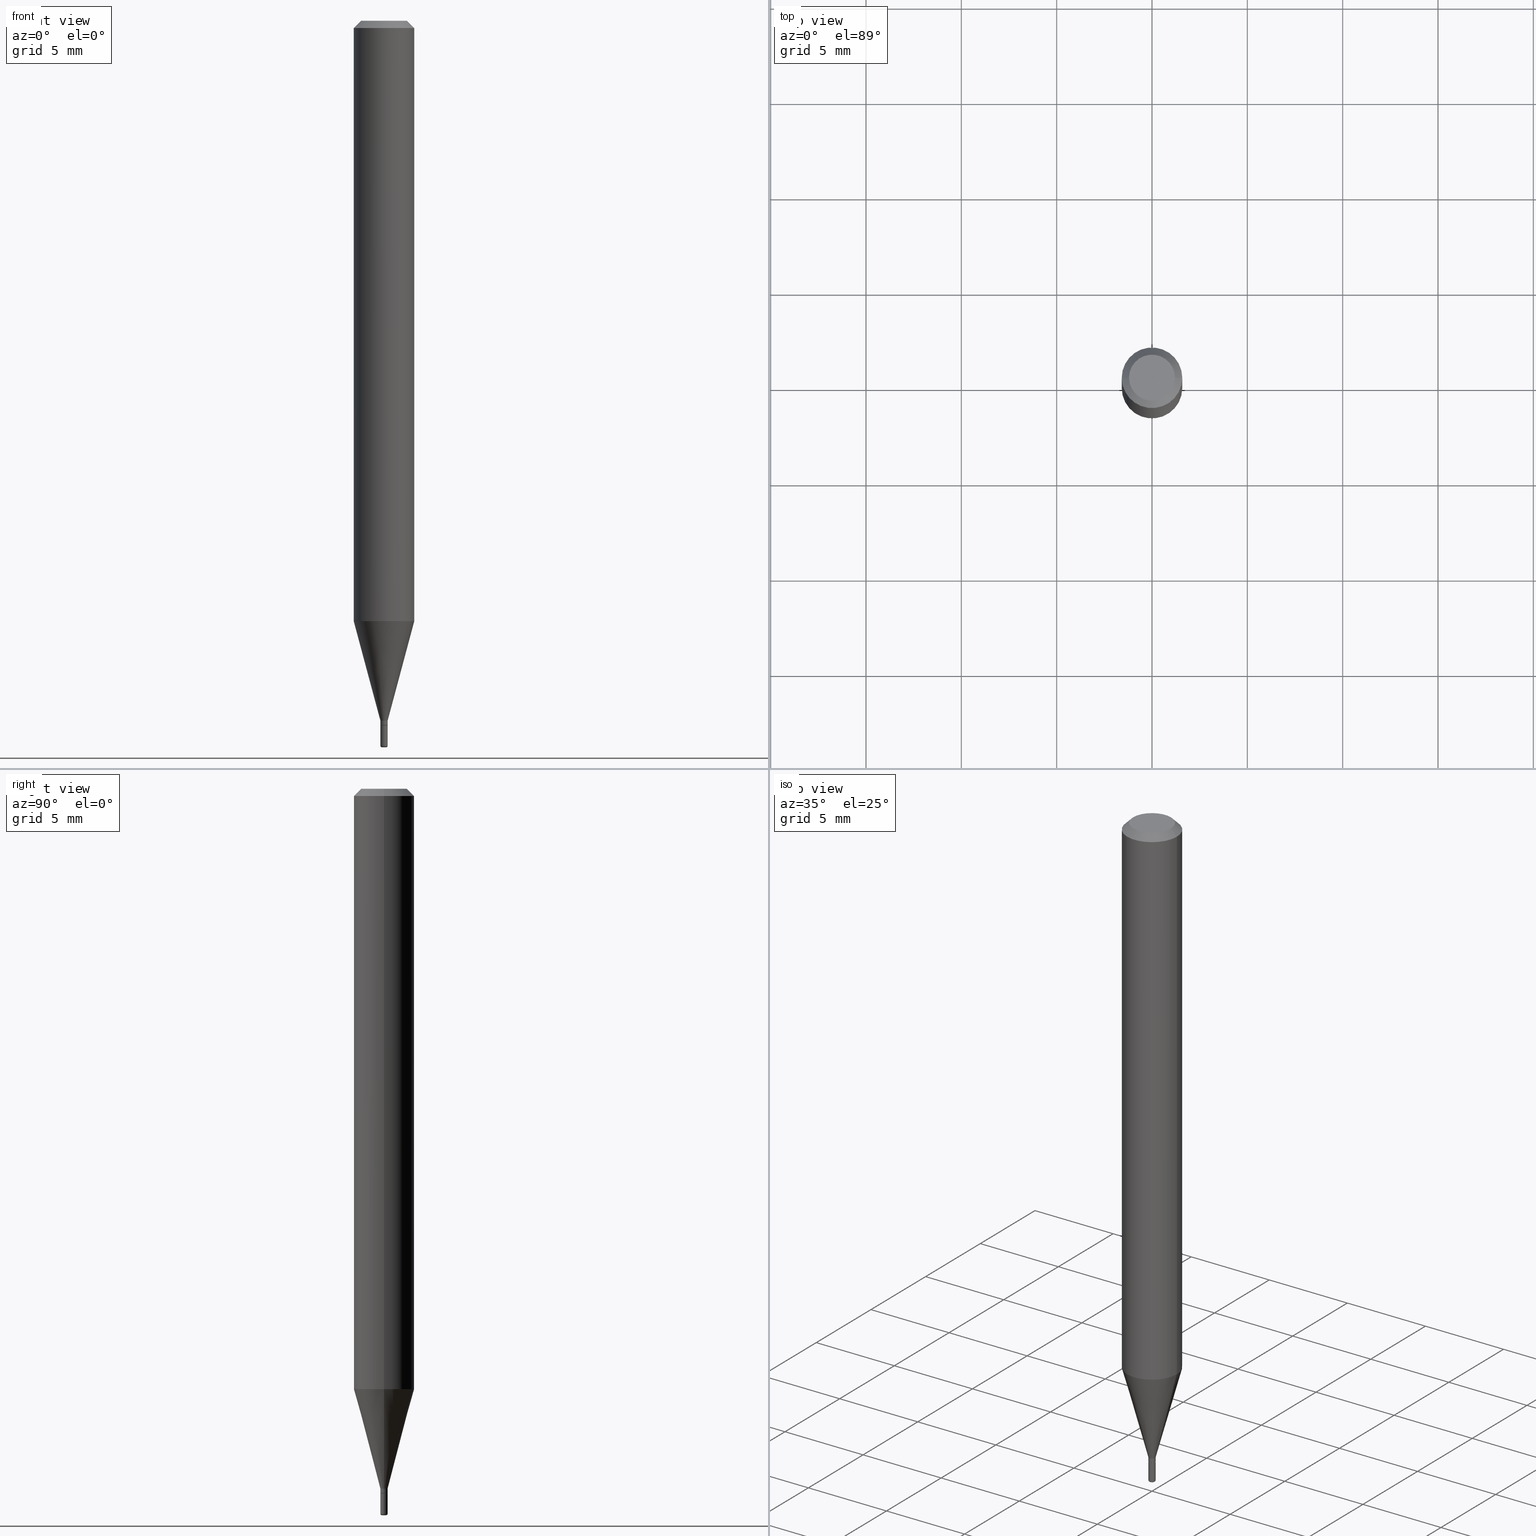
[diagram: canonical four-view strip — front | top / right | iso, engineering-drawing reading convention]
A machine part, canonical four-view strip (front | top / right | iso — engineering-drawing reading convention). The complete STEP part file that produces these views, byte-faithful:
ISO-10303-21;
HEADER;
FILE_DESCRIPTION (( 'STEP AP203' ),
    '1' );
FILE_NAME ('08987.STEP',
    '2024-02-29T21:03:39',
    ( '' ),
    ( '' ),
    'SwSTEP 2.0',
    'SolidWorks 2023',
    '' );
FILE_SCHEMA (( 'CONFIG_CONTROL_DESIGN' ));
ENDSEC;

DATA;
#1 = CONICAL_SURFACE ( 'NONE', #30, 0.06250000000000000000, 0.7853981633974488341 ) ;
#2 = CONICAL_SURFACE ( 'NONE', #285, 0.006999999999999981064, 0.7853981633972754173 ) ;
#3 = MECHANICAL_CONTEXT ( 'NONE', #153, 'mechanical' ) ;
#4 = APPROVAL_DATE_TIME ( #85, #498 ) ;
#5 = VERTEX_POINT ( 'NONE', #199 ) ;
#6 = AXIS2_PLACEMENT_3D ( 'NONE', #260, #412, #196 ) ;
#7 = EDGE_CURVE ( 'NONE', #397, #500, #471, .T. ) ;
#8 = FACE_OUTER_BOUND ( 'NONE', #293, .T. ) ;
#9 = CARTESIAN_POINT ( 'NONE',  ( 0.006999999999999981064, -5.128986086760581011E-15, -1.455000000000000293 ) ) ;
#10 = LINE ( 'NONE', #140, #274 ) ;
#11 = CARTESIAN_POINT ( 'NONE',  ( 0.007499999999999965028, -5.279119784330836629E-15, -1.497000000000000108 ) ) ;
#12 = EDGE_LOOP ( 'NONE', ( #428, #108, #54, #371 ) ) ;
#13 = EDGE_CURVE ( 'NONE', #291, #500, #324, .T. ) ;
#14 = CARTESIAN_POINT ( 'NONE',  ( 0.06250000000000000000, -4.888073874380378612E-16, -0.01499999999999970281 ) ) ;
#15 = CARTESIAN_POINT ( 'NONE',  ( -0.007499999999999981508, 5.329070518200738255E-17, -3.689201317691170508E-31 ) ) ;
#16 = DIRECTION ( 'NONE',  ( 1.000000000000000000, -6.982962677686266711E-15, 0.000000000000000000 ) ) ;
#17 = VECTOR ( 'NONE', #352, 39.37007874015748143 ) ;
#18 = CARTESIAN_POINT ( 'NONE',  ( -0.007499999999999976304, -4.991899829446338518E-15, -1.445000000000000062 ) ) ;
#19 = FACE_OUTER_BOUND ( 'NONE', #459, .T. ) ;
#20 = DIRECTION ( 'NONE',  ( 7.105427357601001859E-15, 1.000000000000000000, -3.491481338843145583E-15 ) ) ;
#21 = ORIENTED_EDGE ( 'NONE', *, *, #255, .T. ) ;
#22 = CARTESIAN_POINT ( 'NONE',  ( 3.668203209277632395E-31, -5.237222008264614861E-17, -0.01499999999999970281 ) ) ;
#23 = DIRECTION ( 'NONE',  ( 1.000000000000000000, -6.982962677686268288E-15, 0.000000000000000000 ) ) ;
#24 = MANIFOLD_SOLID_BREP ( 'Body-Move/Copy2[2]', #62 ) ;
#25 = DIRECTION ( 'NONE',  ( 1.000000000000000000, -6.982962677686265922E-15, 4.876176775795935793E-29 ) ) ;
#26 = CARTESIAN_POINT ( 'NONE',  ( 3.668203209277704895E-29, -5.237222008264718177E-15, -1.500000000000000222 ) ) ;
#27 = LINE ( 'NONE', #191, #17 ) ;
#28 = CARTESIAN_POINT ( 'NONE',  ( 3.660866802859150328E-29, -5.226747564248189155E-15, -1.497000000000000108 ) ) ;
#29 = ADVANCED_FACE ( 'NONE', ( #19 ), #183, .T. ) ;
#30 = AXIS2_PLACEMENT_3D ( 'NONE', #143, #387, #346 ) ;
#31 = LINE ( 'NONE', #468, #204 ) ;
#32 = ORIENTED_EDGE ( 'NONE', *, *, #355, .F. ) ;
#33 = CALENDAR_DATE ( 2024, 29, 2 ) ;
#34 = CARTESIAN_POINT ( 'NONE',  ( 3.031738664122096989E-29, -4.328519318365077590E-15, -1.239737205583711699 ) ) ;
#35 = AXIS2_PLACEMENT_3D ( 'NONE', #329, #101, #25 ) ;
#36 = VECTOR ( 'NONE', #491, 39.37007874015748143 ) ;
#37 = ORIENTED_EDGE ( 'NONE', *, *, #445, .T. ) ;
#38 = CC_DESIGN_PERSON_AND_ORGANIZATION_ASSIGNMENT ( #515, #314, ( #194 ) ) ;
#39 = APPROVAL_STATUS ( 'not_yet_approved' ) ;
#40 = VERTEX_POINT ( 'NONE', #11 ) ;
#41 = CARTESIAN_POINT ( 'NONE',  ( 0.000000000000000000, 0.000000000000000000, 0.000000000000000000 ) ) ;
#42 = APPLICATION_PROTOCOL_DEFINITION ( 'international standard', 'config_control_design', 1994, #153 ) ;
#43 = EDGE_CURVE ( 'NONE', #351, #131, #358, .T. ) ;
#44 = DIRECTION ( 'NONE',  ( -2.445468806185136597E-29, 3.491481338843145583E-15, 1.000000000000000000 ) ) ;
#45 = AXIS2_PLACEMENT_3D ( 'NONE', #250, #70, #389 ) ;
#46 = COORDINATED_UNIVERSAL_TIME_OFFSET ( 5, 0, .BEHIND. ) ;
#47 = CARTESIAN_POINT ( 'NONE',  ( 3.031738664122096989E-29, -4.328519318365077590E-15, -1.239737205583711699 ) ) ;
#48 = EDGE_CURVE ( 'NONE', #40, #5, #152, .T. ) ;
#49 = DIRECTION ( 'NONE',  ( 1.000000000000000000, -6.982962677686266711E-15, 4.876176775795935232E-29 ) ) ;
#50 = CIRCLE ( 'NONE', #289, 0.007499999999999980640 ) ;
#51 = VECTOR ( 'NONE', #224, 39.37007874015748143 ) ;
#52 = ORIENTED_EDGE ( 'NONE', *, *, #239, .T. ) ;
#53 = CARTESIAN_POINT ( 'NONE',  ( 0.007499999999999978906, -5.237222008264685119E-17, 3.657132581846941247E-31 ) ) ;
#54 = ORIENTED_EDGE ( 'NONE', *, *, #403, .F. ) ;
#55 = DIRECTION ( 'NONE',  ( 2.445468806185136597E-29, -3.491481338843145583E-15, -1.000000000000000000 ) ) ;
#56 = CYLINDRICAL_SURFACE ( 'NONE', #440, 0.06250000000000000000 ) ;
#57 = VERTEX_POINT ( 'NONE', #137 ) ;
#58 = PRODUCT_RELATED_PRODUCT_CATEGORY ( 'detail', '', ( #450 ) ) ;
#59 = CARTESIAN_POINT ( 'NONE',  ( -0.004499999999999991854, -5.194773141138985013E-15, -1.497000000000000108 ) ) ;
#60 = ORIENTED_EDGE ( 'NONE', *, *, #493, .F. ) ;
#61 = DIRECTION ( 'NONE',  ( -2.445468806185136597E-29, 3.491481338843145583E-15, 1.000000000000000000 ) ) ;
#62 = CLOSED_SHELL ( 'NONE', ( #395, #434, #73, #460, #29, #107, #68, #406, #366, #372, #228, #378 ) ) ;
#63 = DIRECTION ( 'NONE',  ( 0.7071067811865479058, -7.319954787623257623E-15, -0.7071067811865471286 ) ) ;
#64 = AXIS2_PLACEMENT_3D ( 'NONE', #354, #499, #508 ) ;
#65 = CIRCLE ( 'NONE', #161, 0.007499999999999980640 ) ;
#66 = CARTESIAN_POINT ( 'NONE',  ( 0.06250000000000000000, -4.764954485720470049E-15, -1.239737205583711699 ) ) ;
#67 = DIRECTION ( 'NONE',  ( -2.445468806185136597E-29, 3.491481338843145583E-15, 1.000000000000000000 ) ) ;
#68 = ADVANCED_FACE ( 'NONE', ( #299 ), #82, .T. ) ;
#69 = ORIENTED_EDGE ( 'NONE', *, *, #429, .T. ) ;
#70 = DIRECTION ( 'NONE',  ( -2.445468806185136597E-29, 3.491481338843145583E-15, 1.000000000000000000 ) ) ;
#71 = ORIENTED_EDGE ( 'NONE', *, *, #477, .T. ) ;
#72 = PERSON_AND_ORGANIZATION ( #214, #488 ) ;
#73 = ADVANCED_FACE ( 'NONE', ( #237 ), #1, .T. ) ;
#74 = CARTESIAN_POINT ( 'NONE',  ( -0.004499999999999991854, -5.189352222110848406E-15, -1.500000000000000222 ) ) ;
#75 = ORIENTED_EDGE ( 'NONE', *, *, #149, .T. ) ;
#76 = COORDINATED_UNIVERSAL_TIME_OFFSET ( 5, 0, .BEHIND. ) ;
#77 = CARTESIAN_POINT ( 'NONE',  ( 0.000000000000000000, 0.000000000000000000, 0.000000000000000000 ) ) ;
#78 = AXIS2_PLACEMENT_3D ( 'NONE', #254, #327, #483 ) ;
#79 = CARTESIAN_POINT ( 'NONE',  ( 0.007499999999999976304, -5.097562754710993158E-15, -1.445000000000000062 ) ) ;
#80 = DIRECTION ( 'NONE',  ( 1.000000000000000000, -6.982962677686262766E-15, 0.000000000000000000 ) ) ;
#81 = PERSON_AND_ORGANIZATION ( #214, #488 ) ;
#82 = CYLINDRICAL_SURFACE ( 'NONE', #45, 0.06250000000000000000 ) ;
#83 = CIRCLE ( 'NONE', #160, 0.002999999999999972741 ) ;
#84 = AXIS2_PLACEMENT_3D ( 'NONE', #264, #485, #455 ) ;
#85 = DATE_AND_TIME ( #439, #359 ) ;
#86 = ORIENTED_EDGE ( 'NONE', *, *, #198, .F. ) ;
#87 = CYLINDRICAL_SURFACE ( 'NONE', #367, 0.007499999999999981508 ) ;
#88 = DIRECTION ( 'NONE',  ( -2.445468806185136597E-29, 3.491481338843145583E-15, 1.000000000000000000 ) ) ;
#89 = CARTESIAN_POINT ( 'NONE',  ( 0.000000000000000000, 0.000000000000000000, 0.000000000000000000 ) ) ;
#90 = AXIS2_PLACEMENT_3D ( 'NONE', #447, #174, #261 ) ;
#91 = PLANE ( 'NONE',  #6 ) ;
#92 = AXIS2_PLACEMENT_3D ( 'NONE', #139, #88, #229 ) ;
#93 = PLANE ( 'NONE',  #419 ) ;
#94 = DIRECTION ( 'NONE',  ( 1.000000000000000000, -6.982962677686266711E-15, 4.876176775795935793E-29 ) ) ;
#95 = FACE_OUTER_BOUND ( 'NONE', #111, .T. ) ;
#96 = EDGE_CURVE ( 'NONE', #5, #40, #165, .T. ) ;
#97 = DIRECTION ( 'NONE',  ( -2.445468806185136877E-29, 3.491481338843145188E-15, 1.000000000000000000 ) ) ;
#98 = ORIENTED_EDGE ( 'NONE', *, *, #477, .F. ) ;
#99 = FACE_OUTER_BOUND ( 'NONE', #280, .T. ) ;
#100 =( NAMED_UNIT ( * ) SI_UNIT ( $, .STERADIAN. ) SOLID_ANGLE_UNIT ( ) );
#101 = DIRECTION ( 'NONE',  ( -2.438088387897960049E-29, 3.491481338843145188E-15, 1.000000000000000000 ) ) ;
#102 = CARTESIAN_POINT ( 'NONE',  ( -0.007499999999999980640, -5.025068902165347874E-15, -1.454500000000000126 ) ) ;
#103 = FACE_OUTER_BOUND ( 'NONE', #186, .T. ) ;
#104 = TOROIDAL_SURFACE ( 'NONE', #273, 0.004499999999999991854, 0.002999999999999972741 ) ;
#105 = SECURITY_CLASSIFICATION ( '', '', #240 ) ;
#106 = ORIENTED_EDGE ( 'NONE', *, *, #207, .F. ) ;
#107 = ADVANCED_FACE ( 'NONE', ( #95 ), #252, .T. ) ;
#108 = ORIENTED_EDGE ( 'NONE', *, *, #211, .T. ) ;
#109 = FACE_OUTER_BOUND ( 'NONE', #118, .T. ) ;
#110 = DIRECTION ( 'NONE',  ( 1.000000000000000000, -6.982962677686300632E-15, 0.000000000000000000 ) ) ;
#111 = EDGE_LOOP ( 'NONE', ( #241, #164, #484, #175 ) ) ;
#112 = ADVANCED_FACE ( 'NONE', ( #103 ), #104, .T. ) ;
#113 = CIRCLE ( 'NONE', #512, 0.006999999999999981064 ) ;
#114 = PERSON_AND_ORGANIZATION ( #214, #488 ) ;
#115 = LOCAL_TIME ( 16, 3, 39.00000000000000000, #124 ) ;
#116 = DIRECTION ( 'NONE',  ( 0.2588190451025206840, 1.565188264969626504E-15, 0.9659258262890682012 ) ) ;
#117 = APPROVAL ( #368, 'UNSPECIFIED' ) ;
#118 = EDGE_LOOP ( 'NONE', ( #171, #462, #360, #423 ) ) ;
#119 = ORIENTED_EDGE ( 'NONE', *, *, #457, .F. ) ;
#120 = VECTOR ( 'NONE', #116, 39.37007874015748854 ) ;
#121 = CIRCLE ( 'NONE', #172, 0.04750000000000000749 ) ;
#122 = EDGE_CURVE ( 'NONE', #154, #417, #270, .T. ) ;
#123 = APPLICATION_PROTOCOL_DEFINITION ( 'international standard', 'config_control_design', 1994, #443 ) ;
#124 = COORDINATED_UNIVERSAL_TIME_OFFSET ( 5, 0, .BEHIND. ) ;
#125 = PERSON_AND_ORGANIZATION ( #214, #488 ) ;
#126 = EDGE_CURVE ( 'NONE', #310, #57, #438, .T. ) ;
#127 = AXIS2_PLACEMENT_3D ( 'NONE', #77, #361, #517 ) ;
#128 = ORIENTED_EDGE ( 'NONE', *, *, #321, .T. ) ;
#129 = EDGE_CURVE ( 'NONE', #57, #310, #349, .T. ) ;
#130 = PLANE ( 'NONE',  #35 ) ;
#131 = VERTEX_POINT ( 'NONE', #226 ) ;
#132 = DIRECTION ( 'NONE',  ( -2.445468806185136597E-29, 3.491481338843145583E-15, 1.000000000000000000 ) ) ;
#133 = ORIENTED_EDGE ( 'NONE', *, *, #43, .F. ) ;
#134 = DIRECTION ( 'NONE',  ( 1.000000000000000000, -6.982962677686266711E-15, 4.876176775795935232E-29 ) ) ;
#135 = ADVANCED_FACE ( 'NONE', ( #306 ), #192, .T. ) ;
#136 = CIRCLE ( 'NONE', #284, 0.004499999999999991854 ) ;
#137 = CARTESIAN_POINT ( 'NONE',  ( 0.007499999999999999722, -5.132477568099424807E-15, -1.455000000000000293 ) ) ;
#138 = ORIENTED_EDGE ( 'NONE', *, *, #507, .T. ) ;
#139 = CARTESIAN_POINT ( 'NONE',  ( 3.668203209277632395E-31, -5.237222008264614861E-17, -0.01499999999999970281 ) ) ;
#140 = CARTESIAN_POINT ( 'NONE',  ( 0.007499999999999981508, -5.237222008264687584E-17, 3.657132581846942999E-31 ) ) ;
#141 = ORIENTED_EDGE ( 'NONE', *, *, #493, .T. ) ;
#142 = CARTESIAN_POINT ( 'NONE',  ( 3.533702424937522517E-29, -5.045190534628345684E-15, -1.445000000000000062 ) ) ;
#143 = CARTESIAN_POINT ( 'NONE',  ( 3.668203209277632395E-31, -5.237222008264614861E-17, -0.01499999999999970281 ) ) ;
#144 = ORIENTED_EDGE ( 'NONE', *, *, #355, .T. ) ;
#145 = DIRECTION ( 'NONE',  ( -1.000000000000000000, 6.982962677686265922E-15, -4.876176775795935793E-29 ) ) ;
#146 = EDGE_LOOP ( 'NONE', ( #60, #208, #342, #373 ) ) ;
#147 = DIRECTION ( 'NONE',  ( -2.445468806185136597E-29, 3.491481338843145583E-15, 1.000000000000000000 ) ) ;
#148 = ORIENTED_EDGE ( 'NONE', *, *, #48, .F. ) ;
#149 = EDGE_CURVE ( 'NONE', #131, #351, #113, .T. ) ;
#150 = AXIS2_PLACEMENT_3D ( 'NONE', #47, #44, #80 ) ;
#151 = CARTESIAN_POINT ( 'NONE',  ( 3.660866802859150328E-29, -5.226747564248189155E-15, -1.497000000000000108 ) ) ;
#152 = CIRCLE ( 'NONE', #408, 0.007499999999999965028 ) ;
#153 = APPLICATION_CONTEXT ( 'configuration controlled 3d designs of mechanical parts and assemblies' ) ;
#154 = VERTEX_POINT ( 'NONE', #155 ) ;
#155 = CARTESIAN_POINT ( 'NONE',  ( 0.04750000000000000749, -4.035134999187568762E-16, 2.731847993664288856E-16 ) ) ;
#156 = EDGE_CURVE ( 'NONE', #276, #154, #121, .T. ) ;
#157 = DIRECTION ( 'NONE',  ( -2.445468806185136597E-29, 3.491481338843145583E-15, 1.000000000000000000 ) ) ;
#158 = ORIENTED_EDGE ( 'NONE', *, *, #7, .F. ) ;
#159 = CC_DESIGN_PERSON_AND_ORGANIZATION_ASSIGNMENT ( #125, #288, ( #450 ) ) ;
#160 = AXIS2_PLACEMENT_3D ( 'NONE', #345, #232, #385 ) ;
#161 = AXIS2_PLACEMENT_3D ( 'NONE', #414, #220, #300 ) ;
#162 = PERSON_AND_ORGANIZATION ( #214, #488 ) ;
#163 = PERSON_AND_ORGANIZATION_ROLE ( 'classification_officer' ) ;
#164 = ORIENTED_EDGE ( 'NONE', *, *, #266, .T. ) ;
#165 = CIRCLE ( 'NONE', #470, 0.007499999999999965028 ) ;
#166 = CIRCLE ( 'NONE', #369, 0.04750000000000000749 ) ;
#167 = PERSON_AND_ORGANIZATION ( #214, #488 ) ;
#168 = DIRECTION ( 'NONE',  ( 1.000000000000000000, 0.000000000000000000, 0.000000000000000000 ) ) ;
#169 = CALENDAR_DATE ( 2024, 29, 2 ) ;
#170 = SHAPE_DEFINITION_REPRESENTATION ( #490, #464 ) ;
#171 = ORIENTED_EDGE ( 'NONE', *, *, #445, .F. ) ;
#172 = AXIS2_PLACEMENT_3D ( 'NONE', #313, #265, #509 ) ;
#173 = VECTOR ( 'NONE', #303, 39.37007874015748854 ) ;
#174 = DIRECTION ( 'NONE',  ( -2.445468806185136597E-29, 3.491481338843145583E-15, 1.000000000000000000 ) ) ;
#175 = ORIENTED_EDGE ( 'NONE', *, *, #13, .F. ) ;
#176 = CARTESIAN_POINT ( 'NONE',  ( 0.06250000000000000000, -4.364351673553916694E-16, 3.047610484872459871E-30 ) ) ;
#177 = DIRECTION ( 'NONE',  ( 2.438088387897960049E-29, -3.491481338843145188E-15, -1.000000000000000000 ) ) ;
#178 = DIRECTION ( 'NONE',  ( -2.445468806185136597E-29, 3.491481338843145583E-15, 1.000000000000000000 ) ) ;
#179 = CARTESIAN_POINT ( 'NONE',  ( -0.06250000000000000000, 4.440892098500626162E-16, -3.074334431409316114E-30 ) ) ;
#180 = DIRECTION ( 'NONE',  ( -2.445468806185136597E-29, 3.491481338843145583E-15, 1.000000000000000000 ) ) ;
#181 = CARTESIAN_POINT ( 'NONE',  ( 3.316907271900976589E-16, 0.04750000000000000749, -2.925296391183627249E-17 ) ) ;
#182 = DIRECTION ( 'NONE',  ( -2.445468806185136597E-29, 3.491481338843145583E-15, 1.000000000000000000 ) ) ;
#183 = CONICAL_SURFACE ( 'NONE', #78, 0.007499999999999976304, 0.2617993877991494078 ) ;
#184 = CARTESIAN_POINT ( 'NONE',  ( 3.668203209277704895E-29, -5.237222008264718177E-15, -1.500000000000000222 ) ) ;
#185 = CARTESIAN_POINT ( 'NONE',  ( 0.004499999999999991854, -5.268645340314306819E-15, -1.500000000000000222 ) ) ;
#186 = EDGE_LOOP ( 'NONE', ( #399, #52, #144, #513 ) ) ;
#187 = DIRECTION ( 'NONE',  ( 1.000000000000000000, -6.982962677686290376E-15, 0.000000000000000000 ) ) ;
#188 = VERTEX_POINT ( 'NONE', #74 ) ;
#189 = DIRECTION ( 'NONE',  ( 1.000000000000000000, -6.982962677686237523E-15, 0.000000000000000000 ) ) ;
#190 = CC_DESIGN_PERSON_AND_ORGANIZATION_ASSIGNMENT ( #370, #469, ( #194 ) ) ;
#191 = CARTESIAN_POINT ( 'NONE',  ( -0.006999999999999981064, -5.030367356513571065E-15, -1.455000000000000293 ) ) ;
#192 = TOROIDAL_SURFACE ( 'NONE', #230, 0.004499999999999991854, 0.002999999999999972741 ) ;
#193 = CARTESIAN_POINT ( 'NONE',  ( 3.533702424937522517E-29, -5.045190534628345684E-15, -1.445000000000000062 ) ) ;
#194 = PRODUCT_DEFINITION_FORMATION_WITH_SPECIFIED_SOURCE ( 'ANY', '', #450, .NOT_KNOWN. ) ;
#195 = EDGE_LOOP ( 'NONE', ( #328, #37, #333, #244 ) ) ;
#196 = DIRECTION ( 'NONE',  ( -1.000000000000000000, 6.982962677686265922E-15, -4.876176775795935793E-29 ) ) ;
#197 = CARTESIAN_POINT ( 'NONE',  ( 3.660866802859150328E-29, -5.226747564248189155E-15, -1.497000000000000108 ) ) ;
#198 = EDGE_CURVE ( 'NONE', #500, #291, #436, .T. ) ;
#199 = CARTESIAN_POINT ( 'NONE',  ( -0.007499999999999965028, -5.100135750950476472E-15, -1.497000000000000108 ) ) ;
#200 = CARTESIAN_POINT ( 'NONE',  ( -0.06250000000000000000, -3.884430108515014974E-15, -1.239737205583711699 ) ) ;
#201 = DATE_AND_TIME ( #33, #205 ) ;
#202 = DIRECTION ( 'NONE',  ( 1.000000000000000000, -6.982962677686286432E-15, 0.000000000000000000 ) ) ;
#203 = APPROVAL_ROLE ( '' ) ;
#204 = VECTOR ( 'NONE', #304, 39.37007874015748143 ) ;
#205 = LOCAL_TIME ( 16, 3, 39.00000000000000000, #364 ) ;
#206 = EDGE_LOOP ( 'NONE', ( #390, #496 ) ) ;
#207 = EDGE_CURVE ( 'NONE', #235, #417, #316, .T. ) ;
#208 = ORIENTED_EDGE ( 'NONE', *, *, #122, .T. ) ;
#209 = AXIS2_PLACEMENT_3D ( 'NONE', #225, #147, #452 ) ;
#210 =( GEOMETRIC_REPRESENTATION_CONTEXT ( 3 ) GLOBAL_UNCERTAINTY_ASSIGNED_CONTEXT ( ( #466 ) ) GLOBAL_UNIT_ASSIGNED_CONTEXT ( ( #489, #388, #100 ) ) REPRESENTATION_CONTEXT ( 'NONE', 'WORKASPACE' ) );
#211 = EDGE_CURVE ( 'NONE', #291, #235, #442, .T. ) ;
#212 = DATE_AND_TIME ( #437, #325 ) ;
#213 = ORIENTED_EDGE ( 'NONE', *, *, #480, .F. ) ;
#214 = PERSON ( 'UNSPECIFIED', 'UNSPECIFIED', 'UNSPECIFIED', ('UNSPECIFIED'), ('UNSPECIFIED'), ('UNSPECIFIED') ) ;
#215 = ORIENTED_EDGE ( 'NONE', *, *, #298, .T. ) ;
#216 = CIRCLE ( 'NONE', #236, 0.004499999999999991854 ) ;
#217 = CONICAL_SURFACE ( 'NONE', #290, 0.06250000000000000000, 0.7853981633974488341 ) ;
#218 = DIRECTION ( 'NONE',  ( 1.000000000000000000, -6.982962677686290376E-15, 0.000000000000000000 ) ) ;
#219 = ADVANCED_FACE ( 'NONE', ( #386 ), #87, .T. ) ;
#220 = DIRECTION ( 'NONE',  ( -2.445468806185136597E-29, 3.491481338843145583E-15, 1.000000000000000000 ) ) ;
#221 = ORIENTED_EDGE ( 'NONE', *, *, #348, .T. ) ;
#222 = EDGE_LOOP ( 'NONE', ( #344, #75, #307, #317 ) ) ;
#223 = DIRECTION ( 'NONE',  ( -1.000000000000000000, 6.982962677686266711E-15, 0.000000000000000000 ) ) ;
#224 = DIRECTION ( 'NONE',  ( -2.445468806185136877E-29, 3.491481338843145188E-15, 1.000000000000000000 ) ) ;
#225 = CARTESIAN_POINT ( 'NONE',  ( 3.558157112999374623E-29, -5.080105348016777334E-15, -1.455000000000000293 ) ) ;
#226 = CARTESIAN_POINT ( 'NONE',  ( -0.006999999999999981064, -5.027718129339459864E-15, -1.455000000000000293 ) ) ;
#227 = DIRECTION ( 'NONE',  ( 1.000000000000000000, -6.982962677686266711E-15, 4.852736867747365086E-29 ) ) ;
#228 = ADVANCED_FACE ( 'NONE', ( #297 ), #448, .T. ) ;
#229 = DIRECTION ( 'NONE',  ( 1.000000000000000000, -6.982962677686266711E-15, 0.000000000000000000 ) ) ;
#230 = AXIS2_PLACEMENT_3D ( 'NONE', #151, #392, #309 ) ;
#231 = CARTESIAN_POINT ( 'NONE',  ( 3.558157112999374623E-29, -5.080105348016777334E-15, -1.455000000000000293 ) ) ;
#232 = DIRECTION ( 'NONE',  ( -6.982962677686266711E-15, -1.000000000000000000, 3.491481338843145583E-15 ) ) ;
#233 = PRODUCT_DEFINITION ( 'UNKNOWN', '', #194, #487 ) ;
#234 = VERTEX_POINT ( 'NONE', #102 ) ;
#235 = VERTEX_POINT ( 'NONE', #418 ) ;
#236 = AXIS2_PLACEMENT_3D ( 'NONE', #26, #492, #305 ) ;
#237 = FACE_OUTER_BOUND ( 'NONE', #146, .T. ) ;
#238 = CC_DESIGN_APPROVAL ( #498, ( #233 ) ) ;
#239 = EDGE_CURVE ( 'NONE', #188, #433, #216, .T. ) ;
#240 = SECURITY_CLASSIFICATION_LEVEL ( 'unclassified' ) ;
#241 = ORIENTED_EDGE ( 'NONE', *, *, #507, .F. ) ;
#242 = APPROVAL_ROLE ( '' ) ;
#243 = DATE_AND_TIME ( #430, #401 ) ;
#244 = ORIENTED_EDGE ( 'NONE', *, *, #473, .F. ) ;
#245 = EDGE_CURVE ( 'NONE', #397, #269, #461, .T. ) ;
#246 = AXIS2_PLACEMENT_3D ( 'NONE', #142, #326, #301 ) ;
#247 = CC_DESIGN_SECURITY_CLASSIFICATION ( #105, ( #194 ) ) ;
#248 = EDGE_CURVE ( 'NONE', #433, #188, #136, .T. ) ;
#249 = DATE_TIME_ROLE ( 'creation_date' ) ;
#250 = CARTESIAN_POINT ( 'NONE',  ( 0.000000000000000000, 0.000000000000000000, 0.000000000000000000 ) ) ;
#251 = CC_DESIGN_PERSON_AND_ORGANIZATION_ASSIGNMENT ( #114, #163, ( #105 ) ) ;
#252 = CONICAL_SURFACE ( 'NONE', #426, 0.007499999999999976304, 0.2617993877991494078 ) ;
#253 = PERSON_AND_ORGANIZATION_ROLE ( 'creator' ) ;
#254 = CARTESIAN_POINT ( 'NONE',  ( 3.533702424937522517E-29, -5.045190534628345684E-15, -1.445000000000000062 ) ) ;
#255 = EDGE_CURVE ( 'NONE', #500, #417, #380, .T. ) ;
#256 = APPROVAL_PERSON_ORGANIZATION ( #81, #117, #322 ) ;
#257 = CYLINDRICAL_SURFACE ( 'NONE', #502, 0.007499999999999978906 ) ;
#258 = LINE ( 'NONE', #53, #420 ) ;
#259 = ORIENTED_EDGE ( 'NONE', *, *, #321, .F. ) ;
#260 = CARTESIAN_POINT ( 'NONE',  ( 5.237222008268257796E-17, 0.007499999999994919585, -1.455000000000000293 ) ) ;
#261 = DIRECTION ( 'NONE',  ( 1.000000000000000000, -6.982962677686213068E-15, 0.000000000000000000 ) ) ;
#262 = EDGE_LOOP ( 'NONE', ( #518, #69, #148, #32 ) ) ;
#263 = FACE_OUTER_BOUND ( 'NONE', #511, .T. ) ;
#264 = CARTESIAN_POINT ( 'NONE',  ( 3.582686580359766038E-29, -5.359686688179453325E-15, -1.500000000000000222 ) ) ;
#265 = DIRECTION ( 'NONE',  ( -2.445468806185136597E-29, 3.491481338843145583E-15, 1.000000000000000000 ) ) ;
#266 = EDGE_CURVE ( 'NONE', #269, #397, #486, .T. ) ;
#267 = LINE ( 'NONE', #18, #173 ) ;
#268 = CARTESIAN_POINT ( 'NONE',  ( 0.000000000000000000, 0.000000000000000000, 0.000000000000000000 ) ) ;
#269 = VERTEX_POINT ( 'NONE', #482 ) ;
#270 = LINE ( 'NONE', #277, #334 ) ;
#271 = APPROVAL ( #39, 'UNSPECIFIED' ) ;
#272 = DIRECTION ( 'NONE',  ( -2.445468806185136597E-29, 3.491481338843145583E-15, 1.000000000000000000 ) ) ;
#273 = AXIS2_PLACEMENT_3D ( 'NONE', #197, #302, #422 ) ;
#274 = VECTOR ( 'NONE', #330, 39.37007874015748143 ) ;
#275 = DIRECTION ( 'NONE',  ( 1.000000000000000000, -6.982962677686213068E-15, 0.000000000000000000 ) ) ;
#276 = VERTEX_POINT ( 'NONE', #456 ) ;
#277 = CARTESIAN_POINT ( 'NONE',  ( 0.06250000000000000000, -4.811533449433669144E-16, -0.01499999999999970281 ) ) ;
#278 = DIRECTION ( 'NONE',  ( -2.445468806185136597E-29, 3.491481338843145583E-15, 1.000000000000000000 ) ) ;
#279 = CC_DESIGN_APPROVAL ( #117, ( #194 ) ) ;
#280 = EDGE_LOOP ( 'NONE', ( #318, #516 ) ) ;
#281 = CARTESIAN_POINT ( 'NONE',  ( -0.007499999999999999722, -5.100135750950476472E-15, -1.455000000000000293 ) ) ;
#282 = CC_DESIGN_PERSON_AND_ORGANIZATION_ASSIGNMENT ( #167, #253, ( #233 ) ) ;
#283 = CLOSED_SHELL ( 'NONE', ( #135, #219, #286, #311, #112, #465 ) ) ;
#284 = AXIS2_PLACEMENT_3D ( 'NONE', #184, #61, #189 ) ;
#285 = AXIS2_PLACEMENT_3D ( 'NONE', #495, #272, #467 ) ;
#286 = ADVANCED_FACE ( 'NONE', ( #99 ), #91, .F. ) ;
#287 = DATE_AND_TIME ( #169, #115 ) ;
#288 = PERSON_AND_ORGANIZATION_ROLE ( 'design_owner' ) ;
#289 = AXIS2_PLACEMENT_3D ( 'NONE', #432, #278, #202 ) ;
#290 = AXIS2_PLACEMENT_3D ( 'NONE', #416, #55, #223 ) ;
#291 = VERTEX_POINT ( 'NONE', #200 ) ;
#292 = FACE_OUTER_BOUND ( 'NONE', #365, .T. ) ;
#293 = EDGE_LOOP ( 'NONE', ( #312, #141 ) ) ;
#294 = DIRECTION ( 'NONE',  ( -2.445468806185136877E-29, 3.491481338843145188E-15, 1.000000000000000000 ) ) ;
#295 = VECTOR ( 'NONE', #338, 39.37007874015748143 ) ;
#296 = LINE ( 'NONE', #451, #36 ) ;
#297 = FACE_OUTER_BOUND ( 'NONE', #222, .T. ) ;
#298 = EDGE_CURVE ( 'NONE', #234, #505, #50, .T. ) ;
#299 = FACE_OUTER_BOUND ( 'NONE', #494, .T. ) ;
#300 = DIRECTION ( 'NONE',  ( 1.000000000000000000, -6.982962677686286432E-15, 0.000000000000000000 ) ) ;
#301 = DIRECTION ( 'NONE',  ( 1.000000000000000000, -6.982962677686290376E-15, 0.000000000000000000 ) ) ;
#302 = DIRECTION ( 'NONE',  ( -2.445468806185136597E-29, 3.491481338843145583E-15, 1.000000000000000000 ) ) ;
#303 = DIRECTION ( 'NONE',  ( -0.2588190451025206840, 5.211531920934545520E-15, 0.9659258262890682012 ) ) ;
#304 = DIRECTION ( 'NONE',  ( -0.7071067811865479058, 2.468850131082261005E-15, -0.7071067811865471286 ) ) ;
#305 = DIRECTION ( 'NONE',  ( 1.000000000000000000, -6.982962677686237523E-15, 0.000000000000000000 ) ) ;
#306 = FACE_OUTER_BOUND ( 'NONE', #262, .T. ) ;
#307 = ORIENTED_EDGE ( 'NONE', *, *, #457, .T. ) ;
#308 = LINE ( 'NONE', #424, #383 ) ;
#309 = DIRECTION ( 'NONE',  ( 1.000000000000000000, -6.982962677686300632E-15, 4.883557194083124672E-29 ) ) ;
#310 = VERTEX_POINT ( 'NONE', #281 ) ;
#311 = ADVANCED_FACE ( 'NONE', ( #109 ), #514, .T. ) ;
#312 = ORIENTED_EDGE ( 'NONE', *, *, #156, .T. ) ;
#313 = CARTESIAN_POINT ( 'NONE',  ( -6.680649051745406845E-45, 9.538196290434862081E-31, 2.731847993664263218E-16 ) ) ;
#314 = PERSON_AND_ORGANIZATION_ROLE ( 'design_supplier' ) ;
#315 = ORIENTED_EDGE ( 'NONE', *, *, #480, .T. ) ;
#316 = CIRCLE ( 'NONE', #475, 0.06250000000000000000 ) ;
#317 = ORIENTED_EDGE ( 'NONE', *, *, #298, .F. ) ;
#318 = ORIENTED_EDGE ( 'NONE', *, *, #129, .T. ) ;
#319 = DIMENSIONAL_EXPONENTS ( 1.000000000000000000, 0.000000000000000000, 0.000000000000000000, 0.000000000000000000, 0.000000000000000000, 0.000000000000000000, 0.000000000000000000 ) ;
#320 = CIRCLE ( 'NONE', #92, 0.06250000000000000000 ) ;
#321 = EDGE_CURVE ( 'NONE', #234, #269, #308, .T. ) ;
#322 = APPROVAL_ROLE ( '' ) ;
#323 = EDGE_CURVE ( 'NONE', #131, #234, #27, .T. ) ;
#324 = CIRCLE ( 'NONE', #478, 0.06250000000000000000 ) ;
#325 = LOCAL_TIME ( 16, 3, 39.00000000000000000, #46 ) ;
#326 = DIRECTION ( 'NONE',  ( -2.445468806185136597E-29, 3.491481338843145583E-15, 1.000000000000000000 ) ) ;
#327 = DIRECTION ( 'NONE',  ( -2.445468806185136597E-29, 3.491481338843145583E-15, 1.000000000000000000 ) ) ;
#328 = ORIENTED_EDGE ( 'NONE', *, *, #48, .T. ) ;
#329 = CARTESIAN_POINT ( 'NONE',  ( 3.558157112999374623E-29, -5.080105348016777334E-15, -1.455000000000000293 ) ) ;
#330 = DIRECTION ( 'NONE',  ( -2.445468806185136877E-29, 3.491481338843145188E-15, 1.000000000000000000 ) ) ;
#331 = DIRECTION ( 'NONE',  ( 1.000000000000000000, -6.982962677686267499E-15, 4.876176775795935793E-29 ) ) ;
#332 = DIRECTION ( 'NONE',  ( 1.000000000000000000, -6.982962677686300632E-15, 0.000000000000000000 ) ) ;
#333 = ORIENTED_EDGE ( 'NONE', *, *, #129, .F. ) ;
#334 = VECTOR ( 'NONE', #63, 39.37007874015748143 ) ;
#335 = CIRCLE ( 'NONE', #427, 0.002999999999999972741 ) ;
#336 = FACE_OUTER_BOUND ( 'NONE', #206, .T. ) ;
#337 = CC_DESIGN_DATE_AND_TIME_ASSIGNMENT ( #212, #249, ( #233 ) ) ;
#338 = DIRECTION ( 'NONE',  ( -2.445468806185136877E-29, 3.491481338843145188E-15, 1.000000000000000000 ) ) ;
#339 = ORIENTED_EDGE ( 'NONE', *, *, #122, .F. ) ;
#340 = CARTESIAN_POINT ( 'NONE',  ( 0.007499999999999980640, -5.130731827430002515E-15, -1.454500000000000126 ) ) ;
#341 = FACE_OUTER_BOUND ( 'NONE', #411, .T. ) ;
#342 = ORIENTED_EDGE ( 'NONE', *, *, #403, .T. ) ;
#343 = CARTESIAN_POINT ( 'NONE',  ( 0.000000000000000000, 0.000000000000000000, 0.000000000000000000 ) ) ;
#344 = ORIENTED_EDGE ( 'NONE', *, *, #323, .F. ) ;
#345 = CARTESIAN_POINT ( 'NONE',  ( 0.004499999999999991854, -5.258170896297777797E-15, -1.497000000000000108 ) ) ;
#346 = DIRECTION ( 'NONE',  ( -1.000000000000000000, 6.982962677686266711E-15, 0.000000000000000000 ) ) ;
#347 = ORIENTED_EDGE ( 'NONE', *, *, #43, .T. ) ;
#348 = EDGE_CURVE ( 'NONE', #276, #235, #31, .T. ) ;
#349 = CIRCLE ( 'NONE', #400, 0.007499999999999999722 ) ;
#350 = CC_DESIGN_APPROVAL ( #271, ( #105 ) ) ;
#351 = VERTEX_POINT ( 'NONE', #9 ) ;
#352 = DIRECTION ( 'NONE',  ( -0.7071067811864253372, 7.493145998869912398E-15, 0.7071067811866698083 ) ) ;
#353 = ORIENTED_EDGE ( 'NONE', *, *, #149, .F. ) ;
#354 = CARTESIAN_POINT ( 'NONE',  ( 3.558157112999374623E-29, -5.080105348016777334E-15, -1.455000000000000293 ) ) ;
#355 = EDGE_CURVE ( 'NONE', #433, #40, #83, .T. ) ;
#356 = APPROVAL_DATE_TIME ( #201, #271 ) ;
#357 = CC_DESIGN_DATE_AND_TIME_ASSIGNMENT ( #243, #398, ( #105 ) ) ;
#358 = CIRCLE ( 'NONE', #90, 0.006999999999999981064 ) ;
#359 = LOCAL_TIME ( 16, 3, 39.00000000000000000, #363 ) ;
#360 = ORIENTED_EDGE ( 'NONE', *, *, #473, .T. ) ;
#361 = DIRECTION ( 'NONE',  ( -2.445468806185136597E-29, 3.491481338843145583E-15, 1.000000000000000000 ) ) ;
#362 = DIRECTION ( 'NONE',  ( -2.445468806185136597E-29, 3.491481338843145583E-15, 1.000000000000000000 ) ) ;
#363 = COORDINATED_UNIVERSAL_TIME_OFFSET ( 5, 0, .BEHIND. ) ;
#364 = COORDINATED_UNIVERSAL_TIME_OFFSET ( 5, 0, .BEHIND. ) ;
#365 = EDGE_LOOP ( 'NONE', ( #315, #128, #377, #98 ) ) ;
#366 = ADVANCED_FACE ( 'NONE', ( #8 ), #93, .F. ) ;
#367 = AXIS2_PLACEMENT_3D ( 'NONE', #343, #497, #331 ) ;
#368 = APPROVAL_STATUS ( 'not_yet_approved' ) ;
#369 = AXIS2_PLACEMENT_3D ( 'NONE', #375, #178, #227 ) ;
#370 = PERSON_AND_ORGANIZATION ( #214, #488 ) ;
#371 = ORIENTED_EDGE ( 'NONE', *, *, #255, .F. ) ;
#372 = ADVANCED_FACE ( 'NONE', ( #481 ), #130, .F. ) ;
#373 = ORIENTED_EDGE ( 'NONE', *, *, #348, .F. ) ;
#374 = MANIFOLD_SOLID_BREP ( 'Body-Move/Copy2[1]', #283 ) ;
#375 = CARTESIAN_POINT ( 'NONE',  ( -6.680649051745406845E-45, 9.538196290434862081E-31, 2.731847993664263218E-16 ) ) ;
#376 = CARTESIAN_POINT ( 'NONE',  ( 3.660866802859150328E-29, -5.226747564248189155E-15, -1.497000000000000108 ) ) ;
#377 = ORIENTED_EDGE ( 'NONE', *, *, #245, .F. ) ;
#378 = ADVANCED_FACE ( 'NONE', ( #263 ), #421, .T. ) ;
#379 = FACE_OUTER_BOUND ( 'NONE', #12, .T. ) ;
#380 = LINE ( 'NONE', #176, #295 ) ;
#381 = ORIENTED_EDGE ( 'NONE', *, *, #245, .T. ) ;
#382 =( LENGTH_UNIT ( ) NAMED_UNIT ( * ) SI_UNIT ( $, .METRE. ) );
#383 = VECTOR ( 'NONE', #391, 39.37007874015748143 ) ;
#384 = DIRECTION ( 'NONE',  ( 1.000000000000000000, -6.982962677686262766E-15, 0.000000000000000000 ) ) ;
#385 = DIRECTION ( 'NONE',  ( 1.000000000000000000, -6.982962677686396084E-15, 0.000000000000000000 ) ) ;
#386 = FACE_OUTER_BOUND ( 'NONE', #195, .T. ) ;
#387 = DIRECTION ( 'NONE',  ( 2.445468806185136597E-29, -3.491481338843145583E-15, -1.000000000000000000 ) ) ;
#388 =( NAMED_UNIT ( * ) PLANE_ANGLE_UNIT ( ) SI_UNIT ( $, .RADIAN. ) );
#389 = DIRECTION ( 'NONE',  ( 1.000000000000000000, -6.982962677686266711E-15, 4.876176775795935793E-29 ) ) ;
#390 = ORIENTED_EDGE ( 'NONE', *, *, #248, .F. ) ;
#391 = DIRECTION ( 'NONE',  ( -2.445468806185136877E-29, 3.491481338843145188E-15, 1.000000000000000000 ) ) ;
#392 = DIRECTION ( 'NONE',  ( -2.445468806185136597E-29, 3.491481338843145583E-15, 1.000000000000000000 ) ) ;
#393 = EDGE_LOOP ( 'NONE', ( #339, #396, #221, #474 ) ) ;
#394 = DIRECTION ( 'NONE',  ( -2.445468806185136597E-29, 3.491481338843145583E-15, 1.000000000000000000 ) ) ;
#395 = ADVANCED_FACE ( 'NONE', ( #292 ), #257, .T. ) ;
#396 = ORIENTED_EDGE ( 'NONE', *, *, #156, .F. ) ;
#397 = VERTEX_POINT ( 'NONE', #444 ) ;
#398 = DATE_TIME_ROLE ( 'classification_date' ) ;
#399 = ORIENTED_EDGE ( 'NONE', *, *, #429, .F. ) ;
#400 = AXIS2_PLACEMENT_3D ( 'NONE', #231, #157, #23 ) ;
#401 = LOCAL_TIME ( 16, 3, 39.00000000000000000, #76 ) ;
#402 = ORIENTED_EDGE ( 'NONE', *, *, #323, .T. ) ;
#403 = EDGE_CURVE ( 'NONE', #417, #235, #320, .T. ) ;
#404 = DIRECTION ( 'NONE',  ( 0.000000000000000000, 0.000000000000000000, 1.000000000000000000 ) ) ;
#405 = APPROVAL_DATE_TIME ( #287, #117 ) ;
#406 = ADVANCED_FACE ( 'NONE', ( #413 ), #217, .T. ) ;
#407 = CARTESIAN_POINT ( 'NONE',  ( 3.533702424937522517E-29, -5.045190534628345684E-15, -1.445000000000000062 ) ) ;
#408 = AXIS2_PLACEMENT_3D ( 'NONE', #376, #180, #332 ) ;
#409 = AXIS2_PLACEMENT_3D ( 'NONE', #41, #404, #168 ) ;
#410 = PLANE ( 'NONE',  #84 ) ;
#411 = EDGE_LOOP ( 'NONE', ( #347, #402, #213, #119 ) ) ;
#412 = DIRECTION ( 'NONE',  ( 2.438088387897960049E-29, -3.491481338843145188E-15, -1.000000000000000000 ) ) ;
#413 = FACE_OUTER_BOUND ( 'NONE', #393, .T. ) ;
#414 = CARTESIAN_POINT ( 'NONE',  ( 3.556934378596281261E-29, -5.078359607347355041E-15, -1.454500000000000126 ) ) ;
#415 = LENGTH_MEASURE_WITH_UNIT ( LENGTH_MEASURE( 0.02539999999999999897 ), #382 );
#416 = CARTESIAN_POINT ( 'NONE',  ( 3.668203209277632395E-31, -5.237222008264614861E-17, -0.01499999999999970281 ) ) ;
#417 = VERTEX_POINT ( 'NONE', #14 ) ;
#418 = CARTESIAN_POINT ( 'NONE',  ( -0.06250000000000000000, -1.746356559373798930E-15, -0.01499999999999970281 ) ) ;
#419 = AXIS2_PLACEMENT_3D ( 'NONE', #181, #177, #145 ) ;
#420 = VECTOR ( 'NONE', #97, 39.37007874015748143 ) ;
#421 = CYLINDRICAL_SURFACE ( 'NONE', #476, 0.007499999999999978906 ) ;
#422 = DIRECTION ( 'NONE',  ( 1.000000000000000000, -6.982962677686300632E-15, 4.883557194083124672E-29 ) ) ;
#423 = ORIENTED_EDGE ( 'NONE', *, *, #126, .F. ) ;
#424 = CARTESIAN_POINT ( 'NONE',  ( -0.007499999999999978906, 5.329070518200736406E-17, -3.689201317691168757E-31 ) ) ;
#425 = APPROVAL_STATUS ( 'not_yet_approved' ) ;
#426 = AXIS2_PLACEMENT_3D ( 'NONE', #193, #394, #187 ) ;
#427 = AXIS2_PLACEMENT_3D ( 'NONE', #59, #20, #458 ) ;
#428 = ORIENTED_EDGE ( 'NONE', *, *, #198, .T. ) ;
#429 = EDGE_CURVE ( 'NONE', #188, #5, #335, .T. ) ;
#430 = CALENDAR_DATE ( 2024, 29, 2 ) ;
#431 = EDGE_LOOP ( 'NONE', ( #133, #353 ) ) ;
#432 = CARTESIAN_POINT ( 'NONE',  ( 3.556934378596281261E-29, -5.078359607347355041E-15, -1.454500000000000126 ) ) ;
#433 = VERTEX_POINT ( 'NONE', #185 ) ;
#434 = ADVANCED_FACE ( 'NONE', ( #341 ), #2, .T. ) ;
#435 = VECTOR ( 'NONE', #294, 39.37007874015748143 ) ;
#436 = CIRCLE ( 'NONE', #150, 0.06250000000000000000 ) ;
#437 = CALENDAR_DATE ( 2024, 29, 2 ) ;
#438 = CIRCLE ( 'NONE', #64, 0.007499999999999999722 ) ;
#439 = CALENDAR_DATE ( 2024, 29, 2 ) ;
#440 = AXIS2_PLACEMENT_3D ( 'NONE', #89, #182, #94 ) ;
#441 = DIRECTION ( 'NONE',  ( -2.445468806185136597E-29, 3.491481338843145583E-15, 1.000000000000000000 ) ) ;
#442 = LINE ( 'NONE', #179, #435 ) ;
#443 = APPLICATION_CONTEXT ( 'configuration controlled 3d designs of mechanical parts and assemblies' ) ;
#444 = CARTESIAN_POINT ( 'NONE',  ( 0.007499999999999976304, -5.097562754710993158E-15, -1.445000000000000062 ) ) ;
#445 = EDGE_CURVE ( 'NONE', #5, #310, #510, .T. ) ;
#446 = DIRECTION ( 'NONE',  ( -2.445468806185136597E-29, 3.491481338843145583E-15, 1.000000000000000000 ) ) ;
#447 = CARTESIAN_POINT ( 'NONE',  ( 3.558157112999374623E-29, -5.080105348016777334E-15, -1.455000000000000293 ) ) ;
#448 = CONICAL_SURFACE ( 'NONE', #209, 0.006999999999999981064, 0.7853981633972754173 ) ;
#449 = APPROVAL_PERSON_ORGANIZATION ( #162, #498, #203 ) ;
#450 = PRODUCT ( '08987', '08987', '', ( #3 ) ) ;
#451 = CARTESIAN_POINT ( 'NONE',  ( 0.006999999999999981064, -5.128986086760581011E-15, -1.455000000000000293 ) ) ;
#452 = DIRECTION ( 'NONE',  ( 1.000000000000000000, -6.982962677686213068E-15, 0.000000000000000000 ) ) ;
#453 = DIRECTION ( 'NONE',  ( -2.445468806185136597E-29, 3.491481338843145583E-15, 1.000000000000000000 ) ) ;
#454 = CARTESIAN_POINT ( 'NONE',  ( 0.000000000000000000, 0.000000000000000000, 0.000000000000000000 ) ) ;
#455 = DIRECTION ( 'NONE',  ( 1.000000000000000000, -6.982962677686265922E-15, 4.876176775795935793E-29 ) ) ;
#456 = CARTESIAN_POINT ( 'NONE',  ( -0.04750000000000000749, 3.578768372314221353E-16, 2.731847993664239060E-16 ) ) ;
#457 = EDGE_CURVE ( 'NONE', #351, #505, #296, .T. ) ;
#458 = DIRECTION ( 'NONE',  ( -1.000000000000000000, 7.105427357600926128E-15, 0.000000000000000000 ) ) ;
#459 = EDGE_LOOP ( 'NONE', ( #381, #138, #86, #158 ) ) ;
#460 = ADVANCED_FACE ( 'NONE', ( #379 ), #56, .T. ) ;
#461 = CIRCLE ( 'NONE', #501, 0.007499999999999976304 ) ;
#462 = ORIENTED_EDGE ( 'NONE', *, *, #96, .T. ) ;
#463 = DIRECTION ( 'NONE',  ( -2.445468806185136597E-29, 3.491481338843145583E-15, 1.000000000000000000 ) ) ;
#464 = ADVANCED_BREP_SHAPE_REPRESENTATION ( '08987', ( #374, #24, #409 ), #210 ) ;
#465 = ADVANCED_FACE ( 'NONE', ( #336 ), #410, .F. ) ;
#466 = UNCERTAINTY_MEASURE_WITH_UNIT (LENGTH_MEASURE( 1.000000000000000082E-05 ), #489, 'distance_accuracy_value', 'NONE');
#467 = DIRECTION ( 'NONE',  ( 1.000000000000000000, -6.982962677686213068E-15, 0.000000000000000000 ) ) ;
#468 = CARTESIAN_POINT ( 'NONE',  ( -0.06250000000000000000, 3.840629472727455270E-16, -0.01499999999999970281 ) ) ;
#469 = PERSON_AND_ORGANIZATION_ROLE ( 'creator' ) ;
#470 = AXIS2_PLACEMENT_3D ( 'NONE', #28, #453, #110 ) ;
#471 = LINE ( 'NONE', #79, #120 ) ;
#472 = ORIENTED_EDGE ( 'NONE', *, *, #211, .F. ) ;
#473 = EDGE_CURVE ( 'NONE', #40, #57, #10, .T. ) ;
#474 = ORIENTED_EDGE ( 'NONE', *, *, #207, .T. ) ;
#475 = AXIS2_PLACEMENT_3D ( 'NONE', #22, #132, #16 ) ;
#476 = AXIS2_PLACEMENT_3D ( 'NONE', #454, #67, #134 ) ;
#477 = EDGE_CURVE ( 'NONE', #505, #397, #258, .T. ) ;
#478 = AXIS2_PLACEMENT_3D ( 'NONE', #34, #362, #384 ) ;
#479 = ORIENTED_EDGE ( 'NONE', *, *, #266, .F. ) ;
#480 = EDGE_CURVE ( 'NONE', #505, #234, #65, .T. ) ;
#481 = FACE_OUTER_BOUND ( 'NONE', #431, .T. ) ;
#482 = CARTESIAN_POINT ( 'NONE',  ( -0.007499999999999976304, -4.438164968980676746E-15, -1.445000000000000062 ) ) ;
#483 = DIRECTION ( 'NONE',  ( 1.000000000000000000, -6.982962677686290376E-15, 0.000000000000000000 ) ) ;
#484 = ORIENTED_EDGE ( 'NONE', *, *, #7, .T. ) ;
#485 = DIRECTION ( 'NONE',  ( -2.438088387897960049E-29, 3.491481338843145188E-15, 1.000000000000000000 ) ) ;
#486 = CIRCLE ( 'NONE', #246, 0.007499999999999976304 ) ;
#487 = DESIGN_CONTEXT ( 'detailed design', #443, 'design' ) ;
#488 = ORGANIZATION ( 'UNSPECIFIED', 'UNSPECIFIED', '' ) ;
#489 =( CONVERSION_BASED_UNIT ( 'INCH', #415 ) LENGTH_UNIT ( ) NAMED_UNIT ( #319 ) );
#490 = PRODUCT_DEFINITION_SHAPE ( 'NONE', 'NONE',  #233 ) ;
#491 = DIRECTION ( 'NONE',  ( 0.7071067811864253372, -2.468850131080976739E-15, 0.7071067811866698083 ) ) ;
#492 = DIRECTION ( 'NONE',  ( -2.445468806185136597E-29, 3.491481338843145583E-15, 1.000000000000000000 ) ) ;
#493 = EDGE_CURVE ( 'NONE', #154, #276, #166, .T. ) ;
#494 = EDGE_LOOP ( 'NONE', ( #472, #503, #21, #106 ) ) ;
#495 = CARTESIAN_POINT ( 'NONE',  ( 3.558157112999374623E-29, -5.080105348016777334E-15, -1.455000000000000293 ) ) ;
#496 = ORIENTED_EDGE ( 'NONE', *, *, #239, .F. ) ;
#497 = DIRECTION ( 'NONE',  ( -2.445468806185136597E-29, 3.491481338843145583E-15, 1.000000000000000000 ) ) ;
#498 = APPROVAL ( #425, 'UNSPECIFIED' ) ;
#499 = DIRECTION ( 'NONE',  ( -2.445468806185136597E-29, 3.491481338843145583E-15, 1.000000000000000000 ) ) ;
#500 = VERTEX_POINT ( 'NONE', #66 ) ;
#501 = AXIS2_PLACEMENT_3D ( 'NONE', #407, #446, #218 ) ;
#502 = AXIS2_PLACEMENT_3D ( 'NONE', #268, #441, #49 ) ;
#503 = ORIENTED_EDGE ( 'NONE', *, *, #13, .T. ) ;
#504 = APPROVAL_PERSON_ORGANIZATION ( #72, #271, #242 ) ;
#505 = VERTEX_POINT ( 'NONE', #340 ) ;
#506 = CARTESIAN_POINT ( 'NONE',  ( 3.558157112999374623E-29, -5.080105348016777334E-15, -1.455000000000000293 ) ) ;
#507 = EDGE_CURVE ( 'NONE', #269, #291, #267, .T. ) ;
#508 = DIRECTION ( 'NONE',  ( 1.000000000000000000, -6.982962677686268288E-15, 0.000000000000000000 ) ) ;
#509 = DIRECTION ( 'NONE',  ( 1.000000000000000000, -6.982962677686266711E-15, 4.852736867747365086E-29 ) ) ;
#510 = LINE ( 'NONE', #15, #51 ) ;
#511 = EDGE_LOOP ( 'NONE', ( #259, #215, #71, #479 ) ) ;
#512 = AXIS2_PLACEMENT_3D ( 'NONE', #506, #463, #275 ) ;
#513 = ORIENTED_EDGE ( 'NONE', *, *, #96, .F. ) ;
#514 = CYLINDRICAL_SURFACE ( 'NONE', #127, 0.007499999999999981508 ) ;
#515 = PERSON_AND_ORGANIZATION ( #214, #488 ) ;
#516 = ORIENTED_EDGE ( 'NONE', *, *, #126, .T. ) ;
#517 = DIRECTION ( 'NONE',  ( 1.000000000000000000, -6.982962677686267499E-15, 4.876176775795935793E-29 ) ) ;
#518 = ORIENTED_EDGE ( 'NONE', *, *, #248, .T. ) ;
ENDSEC;
END-ISO-10303-21;
